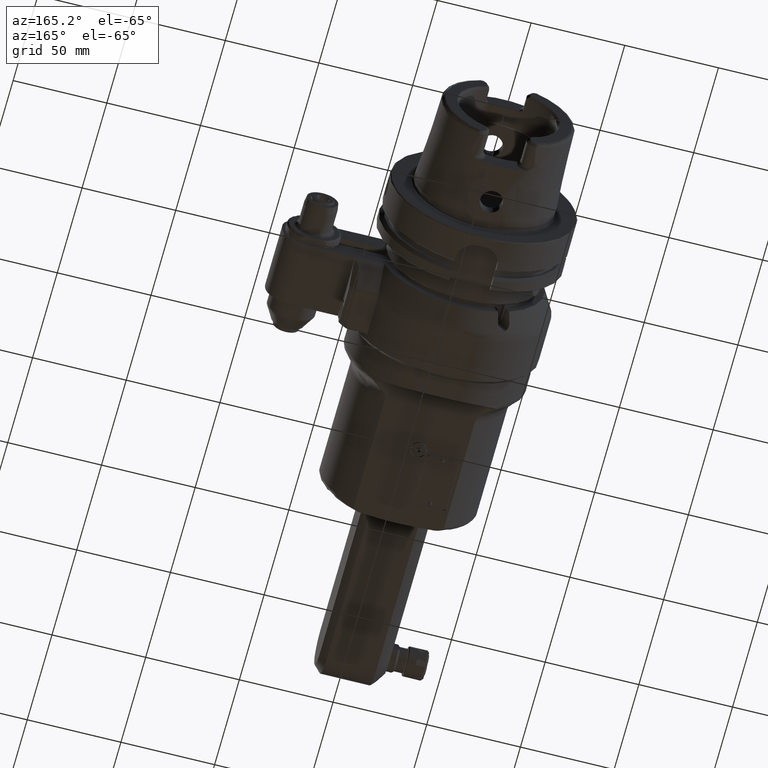
[diagram: clean part render]
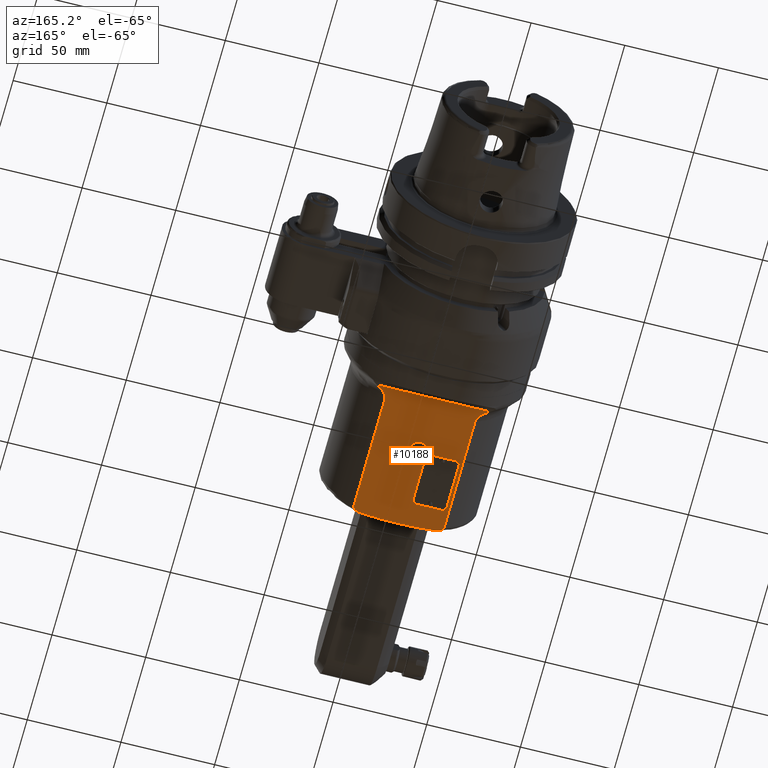
[diagram: same view with one face highlighted and labeled with its STEP entity id]
A machine part, auxiliary view. The second image highlights one B-rep face of the part: STEP entity #10188.
In plain terms, the highlighted planar face has unit normal (0, -0, 1).
Its self-contained STEP definition (entity closure, byte-faithful):
#206=FACE_BOUND('',#1946,.T.);
#207=FACE_BOUND('',#1947,.T.);
#325=B_SPLINE_CURVE_WITH_KNOTS('',3,(#15320,#15321,#15322,#15323,#15324,
#15325,#15326,#15327,#15328,#15329,#15330,#15331),.UNSPECIFIED.,.F.,.F.,
(4,2,2,2,2,4),(-3.03392436585055,-2.9439757659315,-2.82159773617527,-2.64097677020257,
-2.50162802277669,-2.46657715541855),.UNSPECIFIED.);
#326=B_SPLINE_CURVE_WITH_KNOTS('',3,(#15338,#15339,#15340,#15341,#15342,
#15343,#15344,#15345,#15346,#15347,#15348,#15349),.UNSPECIFIED.,.F.,.F.,
(4,2,2,2,2,4),(0.,0.089948599919054,0.212326629675286,0.392947595647987,
0.532296343073863,0.567347210432912),.UNSPECIFIED.);
#327=B_SPLINE_CURVE_WITH_KNOTS('',3,(#15352,#15353,#15354,#15355,#15356,
#15357,#15358,#15359,#15360,#15361,#15362,#15363),.UNSPECIFIED.,.F.,.F.,
(4,2,2,2,2,4),(-3.9755925321678,-3.88354017130337,-3.68979090501666,-3.49604163872995,
-3.34749993163669,-3.21349613324655),.UNSPECIFIED.);
#328=B_SPLINE_CURVE_WITH_KNOTS('',3,(#15368,#15369,#15370,#15371,#15372,
#15373,#15374,#15375,#15376,#15377,#15378,#15379),.UNSPECIFIED.,.F.,.F.,
(4,2,2,2,2,4),(-3.21349613324655,-3.07949233485641,-2.93095062776315,-2.73720136147644,
-2.54345209518972,-2.45139973432608),.UNSPECIFIED.);
#484=(
BOUNDED_CURVE()
B_SPLINE_CURVE(2,(#15259,#15260,#15261),.UNSPECIFIED.,.F.,.F.)
B_SPLINE_CURVE_WITH_KNOTS((3,3),(-6.97941591994211,-6.82828100117643),
 .UNSPECIFIED.)
CURVE()
GEOMETRIC_REPRESENTATION_ITEM()
RATIONAL_B_SPLINE_CURVE((1.02790156873553,1.03535941975755,1.04248119712758))
REPRESENTATION_ITEM('')
);
#485=(
BOUNDED_CURVE()
B_SPLINE_CURVE(2,(#15333,#15334,#15335,#15336),.UNSPECIFIED.,.F.,.F.)
B_SPLINE_CURVE_WITH_KNOTS((3,1,3),(-59.1975800582856,-42.2022928335956,
-33.350093357756),.UNSPECIFIED.)
CURVE()
GEOMETRIC_REPRESENTATION_ITEM()
RATIONAL_B_SPLINE_CURVE((6.5718472576503,7.19173782589553,6.89472470543237,
6.57184725766218))
REPRESENTATION_ITEM('')
);
#486=(
BOUNDED_CURVE()
B_SPLINE_CURVE(2,(#15365,#15366,#15367),.UNSPECIFIED.,.F.,.F.)
B_SPLINE_CURVE_WITH_KNOTS((3,3),(6.82828100116601,6.97941591993121),
 .UNSPECIFIED.)
CURVE()
GEOMETRIC_REPRESENTATION_ITEM()
RATIONAL_B_SPLINE_CURVE((1.04248119712709,1.03535941975708,1.02790156873508))
REPRESENTATION_ITEM('')
);
#783=CIRCLE('',#10895,2.);
#784=CIRCLE('',#10896,2.);
#785=CIRCLE('',#10897,2.);
#786=CIRCLE('',#10898,2.);
#787=CIRCLE('',#10899,4.25);
#1307=FACE_OUTER_BOUND('',#1945,.T.);
#1945=EDGE_LOOP('',(#6843,#6844,#6845,#6846,#6847,#6848,#6849,#6850,#6851,
#6852));
#1946=EDGE_LOOP('',(#6853,#6854,#6855,#6856,#6857,#6858,#6859,#6860));
#1947=EDGE_LOOP('',(#6861));
#2697=LINE('',#15293,#3449);
#2699=LINE('',#15318,#3451);
#2700=LINE('',#15351,#3452);
#2701=LINE('',#15382,#3453);
#2702=LINE('',#15386,#3454);
#2703=LINE('',#15390,#3455);
#2704=LINE('',#15394,#3456);
#3449=VECTOR('',#12106,60.5293256509);
#3451=VECTOR('',#12110,62.25205223266);
#3452=VECTOR('',#12111,62.25205223266);
#3453=VECTOR('',#12112,14.);
#3454=VECTOR('',#12115,25.);
#3455=VECTOR('',#12118,14.);
#3456=VECTOR('',#12121,25.);
#4209=VERTEX_POINT('',#15249);
#4210=VERTEX_POINT('',#15258);
#4215=VERTEX_POINT('',#15292);
#4218=VERTEX_POINT('',#15316);
#4219=VERTEX_POINT('',#15317);
#4220=VERTEX_POINT('',#15319);
#4221=VERTEX_POINT('',#15332);
#4222=VERTEX_POINT('',#15337);
#4223=VERTEX_POINT('',#15350);
#4224=VERTEX_POINT('',#15364);
#4225=VERTEX_POINT('',#15380);
#4226=VERTEX_POINT('',#15381);
#4227=VERTEX_POINT('',#15383);
#4228=VERTEX_POINT('',#15385);
#4229=VERTEX_POINT('',#15387);
#4230=VERTEX_POINT('',#15389);
#4231=VERTEX_POINT('',#15391);
#4232=VERTEX_POINT('',#15393);
#4233=VERTEX_POINT('',#15396);
#5246=EDGE_CURVE('',#4209,#4210,#484,.T.);
#5253=EDGE_CURVE('',#4215,#4209,#2697,.T.);
#5257=EDGE_CURVE('',#4218,#4219,#2699,.T.);
#5258=EDGE_CURVE('',#4218,#4220,#325,.T.);
#5259=EDGE_CURVE('',#4221,#4220,#485,.F.);
#5260=EDGE_CURVE('',#4222,#4221,#326,.T.);
#5261=EDGE_CURVE('',#4223,#4222,#2700,.T.);
#5262=EDGE_CURVE('',#4210,#4223,#327,.T.);
#5263=EDGE_CURVE('',#4224,#4215,#486,.T.);
#5264=EDGE_CURVE('',#4219,#4224,#328,.T.);
#5265=EDGE_CURVE('',#4225,#4226,#2701,.T.);
#5266=EDGE_CURVE('',#4226,#4227,#783,.T.);
#5267=EDGE_CURVE('',#4227,#4228,#2702,.T.);
#5268=EDGE_CURVE('',#4228,#4229,#784,.T.);
#5269=EDGE_CURVE('',#4229,#4230,#2703,.T.);
#5270=EDGE_CURVE('',#4230,#4231,#785,.T.);
#5271=EDGE_CURVE('',#4231,#4232,#2704,.T.);
#5272=EDGE_CURVE('',#4232,#4225,#786,.T.);
#5273=EDGE_CURVE('',#4233,#4233,#787,.T.);
#6843=ORIENTED_EDGE('',*,*,#5257,.F.);
#6844=ORIENTED_EDGE('',*,*,#5258,.T.);
#6845=ORIENTED_EDGE('',*,*,#5259,.F.);
#6846=ORIENTED_EDGE('',*,*,#5260,.F.);
#6847=ORIENTED_EDGE('',*,*,#5261,.F.);
#6848=ORIENTED_EDGE('',*,*,#5262,.F.);
#6849=ORIENTED_EDGE('',*,*,#5246,.F.);
#6850=ORIENTED_EDGE('',*,*,#5253,.F.);
#6851=ORIENTED_EDGE('',*,*,#5263,.F.);
#6852=ORIENTED_EDGE('',*,*,#5264,.F.);
#6853=ORIENTED_EDGE('',*,*,#5265,.T.);
#6854=ORIENTED_EDGE('',*,*,#5266,.T.);
#6855=ORIENTED_EDGE('',*,*,#5267,.T.);
#6856=ORIENTED_EDGE('',*,*,#5268,.T.);
#6857=ORIENTED_EDGE('',*,*,#5269,.T.);
#6858=ORIENTED_EDGE('',*,*,#5270,.T.);
#6859=ORIENTED_EDGE('',*,*,#5271,.T.);
#6860=ORIENTED_EDGE('',*,*,#5272,.T.);
#6861=ORIENTED_EDGE('',*,*,#5273,.T.);
#9890=PLANE('',#10894);
#10188=ADVANCED_FACE('',(#1307,#206,#207),#9890,.F.);
#10894=AXIS2_PLACEMENT_3D('',#15315,#12108,#12109);
#10895=AXIS2_PLACEMENT_3D('',#15384,#12113,#12114);
#10896=AXIS2_PLACEMENT_3D('',#15388,#12116,#12117);
#10897=AXIS2_PLACEMENT_3D('',#15392,#12119,#12120);
#10898=AXIS2_PLACEMENT_3D('',#15395,#12122,#12123);
#10899=AXIS2_PLACEMENT_3D('',#15397,#12124,#12125);
#12106=DIRECTION('',(1.441967052587E-13,-1.,2.818490194983E-13));
#12108=DIRECTION('center_axis',(0.,0.,1.));
#12109=DIRECTION('ref_axis',(1.,0.,0.));
#12110=DIRECTION('',(-1.,0.,0.));
#12111=DIRECTION('',(1.,0.,0.));
#12112=DIRECTION('',(0.,-1.,0.));
#12113=DIRECTION('center_axis',(0.,0.,1.));
#12114=DIRECTION('ref_axis',(-1.,1.42108547152E-14,0.));
#12115=DIRECTION('',(1.,0.,0.));
#12116=DIRECTION('center_axis',(0.,0.,1.));
#12117=DIRECTION('ref_axis',(0.,-1.,0.));
#12118=DIRECTION('',(0.,1.,0.));
#12119=DIRECTION('center_axis',(0.,0.,1.));
#12120=DIRECTION('ref_axis',(1.,0.,0.));
#12121=DIRECTION('',(-1.,0.,0.));
#12122=DIRECTION('center_axis',(0.,0.,1.));
#12123=DIRECTION('ref_axis',(0.,1.,0.));
#12124=DIRECTION('center_axis',(0.,0.,1.));
#12125=DIRECTION('ref_axis',(0.,-1.,0.));
#15249=CARTESIAN_POINT('',(6.731522314068,-30.2646692255702,-35.0000002777577));
#15258=CARTESIAN_POINT('',(7.86893224763953,-28.4966574560155,-34.999999958267));
#15259=CARTESIAN_POINT('Ctrl Pts',(6.73152253161692,-30.2646693679659,-35.));
#15260=CARTESIAN_POINT('Ctrl Pts',(7.31733858036847,-29.3696708233324,-35.));
#15261=CARTESIAN_POINT('Ctrl Pts',(7.86893222449441,-28.4966574413922,-35.));
#15292=CARTESIAN_POINT('',(6.73152231407098,30.2646692255556,-35.0000002777633));
#15293=CARTESIAN_POINT('',(6.731521759496,30.26466282537,-35.00000083329));
#15315=CARTESIAN_POINT('Origin',(32.,51.0000024,-35.));
#15316=CARTESIAN_POINT('',(76.48270110647,24.10912690248,-35.));
#15317=CARTESIAN_POINT('',(14.23064887381,24.10912690248,-35.));
#15318=CARTESIAN_POINT('',(76.48270110647,24.10912690248,-35.));
#15319=CARTESIAN_POINT('',(79.43712436551,19.40814265492,-35.));
#15320=CARTESIAN_POINT('Ctrl Pts',(76.48270110647,24.1091269024824,-35.));
#15321=CARTESIAN_POINT('Ctrl Pts',(76.7825297728669,24.1091269024824,-35.));
#15322=CARTESIAN_POINT('Ctrl Pts',(77.1278524656055,24.0081108249595,-35.));
#15323=CARTESIAN_POINT('Ctrl Pts',(77.7446623733155,23.6610326066405,-35.));
#15324=CARTESIAN_POINT('Ctrl Pts',(78.0877911565569,23.311912637599,-35.));
#15325=CARTESIAN_POINT('Ctrl Pts',(78.670560063678,22.4870043767528,-35.));
#15326=CARTESIAN_POINT('Ctrl Pts',(78.9491858448291,21.8204080913892,-35.));
#15327=CARTESIAN_POINT('Ctrl Pts',(79.2407703151979,20.7944739252647,-35.));
#15328=CARTESIAN_POINT('Ctrl Pts',(79.3378528470765,20.2944416956934,-35.));
#15329=CARTESIAN_POINT('Ctrl Pts',(79.4133193990251,19.6623446000198,-35.));
#15330=CARTESIAN_POINT('Ctrl Pts',(79.4262768989694,19.5349992079495,-35.));
#15331=CARTESIAN_POINT('Ctrl Pts',(79.4371243655062,19.4081426549197,-35.));
#15332=CARTESIAN_POINT('',(79.43712436551,-19.40814265491,-35.));
#15333=CARTESIAN_POINT('Ctrl Pts',(79.4371243654785,19.4081426551891,-35.));
#15334=CARTESIAN_POINT('Ctrl Pts',(80.5773281559946,6.07393949129064,-35.));
#15335=CARTESIAN_POINT('Ctrl Pts',(80.056596934685,-12.1636718324654,-35.));
#15336=CARTESIAN_POINT('Ctrl Pts',(79.4371243655024,-19.4081426549094,-35.));
#15337=CARTESIAN_POINT('',(76.48270110647,-24.10912690248,-35.));
#15338=CARTESIAN_POINT('Ctrl Pts',(76.48270110647,-24.1091269024824,-35.));
#15339=CARTESIAN_POINT('Ctrl Pts',(76.7825297728669,-24.1091269024824,-35.));
#15340=CARTESIAN_POINT('Ctrl Pts',(77.1278524656055,-24.0081108249595,-35.));
#15341=CARTESIAN_POINT('Ctrl Pts',(77.7446623733155,-23.6610326066405,-35.));
#15342=CARTESIAN_POINT('Ctrl Pts',(78.0877911565569,-23.311912637599,-35.));
#15343=CARTESIAN_POINT('Ctrl Pts',(78.670560063678,-22.4870043767528,-35.));
#15344=CARTESIAN_POINT('Ctrl Pts',(78.9491858448291,-21.8204080913892,-35.));
#15345=CARTESIAN_POINT('Ctrl Pts',(79.2407703151979,-20.7944739252647,-35.));
#15346=CARTESIAN_POINT('Ctrl Pts',(79.3378528470765,-20.2944416956934,-35.));
#15347=CARTESIAN_POINT('Ctrl Pts',(79.4133193990255,-19.6623446000165,-35.));
#15348=CARTESIAN_POINT('Ctrl Pts',(79.4262768989701,-19.5349992079428,-35.));
#15349=CARTESIAN_POINT('Ctrl Pts',(79.4371243655071,-19.4081426549098,-35.));
#15350=CARTESIAN_POINT('',(14.23064887381,-24.10912690248,-35.));
#15351=CARTESIAN_POINT('',(14.23064887381,-24.10912690248,-35.));
#15352=CARTESIAN_POINT('Ctrl Pts',(7.86893222449436,-28.4966574413918,-35.));
#15353=CARTESIAN_POINT('Ctrl Pts',(8.0420966966631,-28.2225881003796,-35.));
#15354=CARTESIAN_POINT('Ctrl Pts',(8.22077664137847,-27.9599342733166,-35.));
#15355=CARTESIAN_POINT('Ctrl Pts',(8.78262586052692,-27.1905776804632,-35.));
#15356=CARTESIAN_POINT('Ctrl Pts',(9.2393118399198,-26.6477712329798,-35.));
#15357=CARTESIAN_POINT('Ctrl Pts',(10.2538868481057,-25.673981849847,-35.));
#15358=CARTESIAN_POINT('Ctrl Pts',(10.8130255457707,-25.24430176017,-35.));
#15359=CARTESIAN_POINT('Ctrl Pts',(11.8010930496265,-24.673745061638,-35.));
#15360=CARTESIAN_POINT('Ctrl Pts',(12.3457775780952,-24.4363572262594,-35.));
#15361=CARTESIAN_POINT('Ctrl Pts',(13.253263635225,-24.1843832919984,-35.));
#15362=CARTESIAN_POINT('Ctrl Pts',(13.7839695458429,-24.1091269024824,-35.));
#15363=CARTESIAN_POINT('Ctrl Pts',(14.23064887381,-24.1091269024824,-35.));
#15364=CARTESIAN_POINT('',(7.86893224764299,28.4966574560079,-34.9999999582687));
#15365=CARTESIAN_POINT('Ctrl Pts',(7.86893222449883,28.4966574413852,-35.));
#15366=CARTESIAN_POINT('Ctrl Pts',(7.31733858037439,29.3696708233231,-35.));
#15367=CARTESIAN_POINT('Ctrl Pts',(6.7315225316245,30.2646693679543,-35.));
#15368=CARTESIAN_POINT('Ctrl Pts',(14.23064887381,24.1091269024824,-35.));
#15369=CARTESIAN_POINT('Ctrl Pts',(13.7839695458429,24.1091269024824,-35.));
#15370=CARTESIAN_POINT('Ctrl Pts',(13.253263635225,24.1843832919984,-35.));
#15371=CARTESIAN_POINT('Ctrl Pts',(12.3457775780952,24.4363572262594,-35.));
#15372=CARTESIAN_POINT('Ctrl Pts',(11.8010930496265,24.673745061638,-35.));
#15373=CARTESIAN_POINT('Ctrl Pts',(10.8130255457707,25.24430176017,-35.));
#15374=CARTESIAN_POINT('Ctrl Pts',(10.2538868481057,25.673981849847,-35.));
#15375=CARTESIAN_POINT('Ctrl Pts',(9.2393118399198,26.6477712329798,-35.));
#15376=CARTESIAN_POINT('Ctrl Pts',(8.78262586052692,27.1905776804632,-35.));
#15377=CARTESIAN_POINT('Ctrl Pts',(8.22077664138001,27.9599342733145,-35.));
#15378=CARTESIAN_POINT('Ctrl Pts',(8.04209669666614,28.2225881003752,-35.));
#15379=CARTESIAN_POINT('Ctrl Pts',(7.86893222449878,28.4966574413848,-35.));
#15380=CARTESIAN_POINT('',(38.2500005,-6.5,-35.));
#15381=CARTESIAN_POINT('',(38.2500005,-20.5,-35.));
#15382=CARTESIAN_POINT('',(38.2500005,-6.5,-35.));
#15383=CARTESIAN_POINT('',(40.2500005,-22.5,-35.));
#15384=CARTESIAN_POINT('Origin',(40.2500005,-20.5,-35.));
#15385=CARTESIAN_POINT('',(65.2500005,-22.5,-35.));
#15386=CARTESIAN_POINT('',(40.2500005,-22.5,-35.));
#15387=CARTESIAN_POINT('',(67.2500005,-20.5,-35.));
#15388=CARTESIAN_POINT('Origin',(65.2500005,-20.5,-35.));
#15389=CARTESIAN_POINT('',(67.2500005,-6.5,-35.));
#15390=CARTESIAN_POINT('',(67.2500005,-20.5,-35.));
#15391=CARTESIAN_POINT('',(65.2500005,-4.5,-35.));
#15392=CARTESIAN_POINT('Origin',(65.2500005,-6.5,-35.));
#15393=CARTESIAN_POINT('',(40.2500005,-4.5,-35.));
#15394=CARTESIAN_POINT('',(65.2500005,-4.5,-35.));
#15395=CARTESIAN_POINT('Origin',(40.2500005,-6.5,-35.));
#15396=CARTESIAN_POINT('',(37.,4.25,-35.));
#15397=CARTESIAN_POINT('Origin',(37.,0.,-35.));